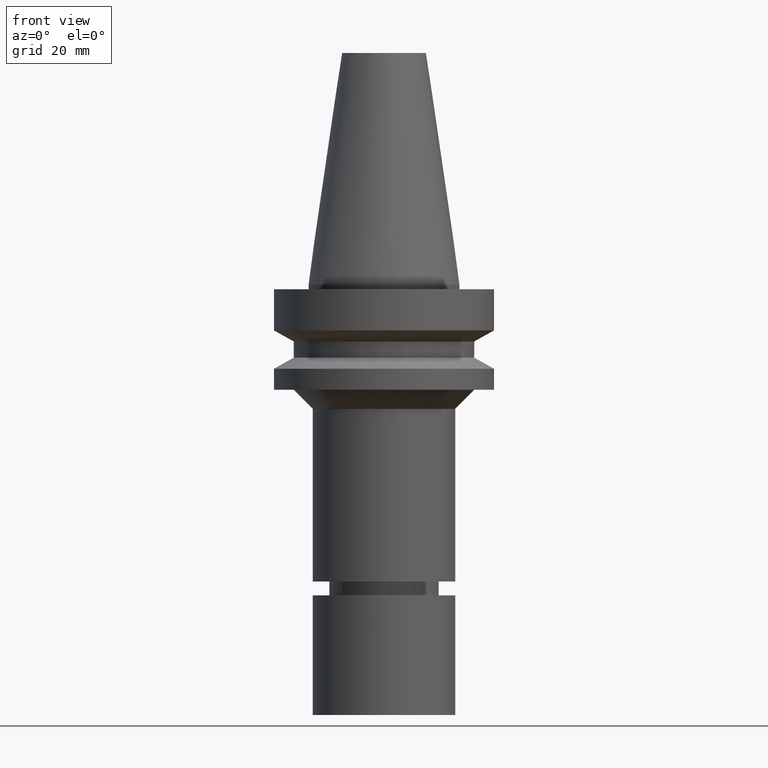
[diagram: clean part render]
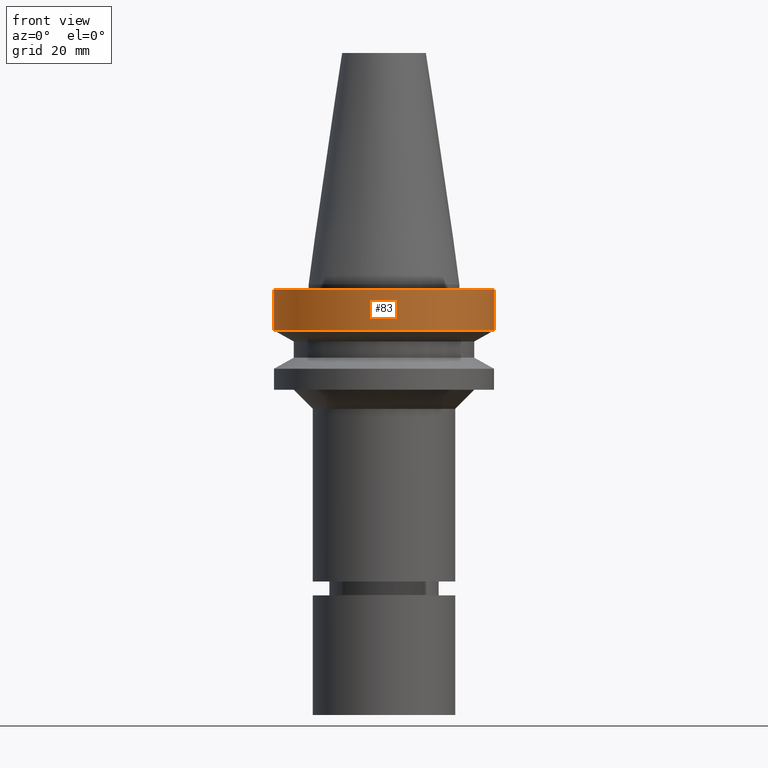
[diagram: same view with one face highlighted and labeled with its STEP entity id]
A machine part, front view. The second image highlights one B-rep face of the part: STEP entity #83.
In plain terms, the highlighted cylindrical surface (bore or boss wall) has radius 23 mm, axis along (0, 0, -1).
Its self-contained STEP definition (entity closure, byte-faithful):
#83=ADVANCED_FACE('Unnamed[1]',(#211,#212),#213,.T.);
#139=EDGE_CURVE('Unnamed[1]',#300,#300,#301,.T.);
#158=EDGE_CURVE('Unnamed[1]',#328,#328,#329,.T.);
#211=FACE_BOUND('',#389,.T.);
#212=FACE_BOUND('',#390,.T.);
#213=CYLINDRICAL_SURFACE('',#391,23.0);
#300=VERTEX_POINT('',#500);
#301=CIRCLE('',#501,23.0);
#328=VERTEX_POINT('',#535);
#329=CIRCLE('',#536,23.0);
#389=EDGE_LOOP('',(#588));
#390=EDGE_LOOP('',(#589));
#391=AXIS2_PLACEMENT_3D('',#590,#591,#592);
#500=CARTESIAN_POINT('',(5.87830463590729E-016,23.0,-9.59999999999999));
#501=AXIS2_PLACEMENT_3D('',#690,#691,#692);
#535=CARTESIAN_POINT('',(6.12323399573674E-017,23.0,-0.999999999999997));
#536=AXIS2_PLACEMENT_3D('',#718,#719,#720);
#588=ORIENTED_EDGE('',*,*,#139,.F.);
#589=ORIENTED_EDGE('',*,*,#158,.T.);
#590=CARTESIAN_POINT('',(3.24531401774048E-016,6.49062803548097E-016,-5.3));
#591=DIRECTION('',(6.12323399573677E-017,1.22464679914716E-016,-1.0));
#592=DIRECTION('',(-1.23259516440783E-032,1.0,1.22464679914716E-016));
#690=CARTESIAN_POINT('',(5.87830463590729E-016,1.17566092718146E-015,-9.59999999999999));
#691=DIRECTION('',(6.12323399573677E-017,1.22464679914716E-016,-1.0));
#692=DIRECTION('',(-1.23259516440783E-032,1.0,1.22464679914716E-016));
#718=CARTESIAN_POINT('',(6.12323399573677E-017,1.22464679914735E-016,-1.0));
#719=DIRECTION('',(6.12323399573677E-017,1.22464679914716E-016,-1.0));
#720=DIRECTION('',(-1.23259516440783E-032,1.0,1.22464679914716E-016));